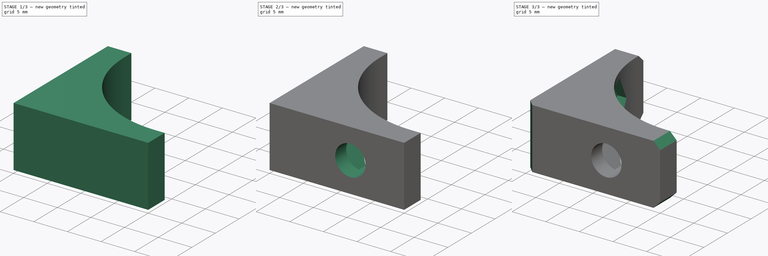
[diagram: build sequence overview — one tinted view per stage of 3, left to right]
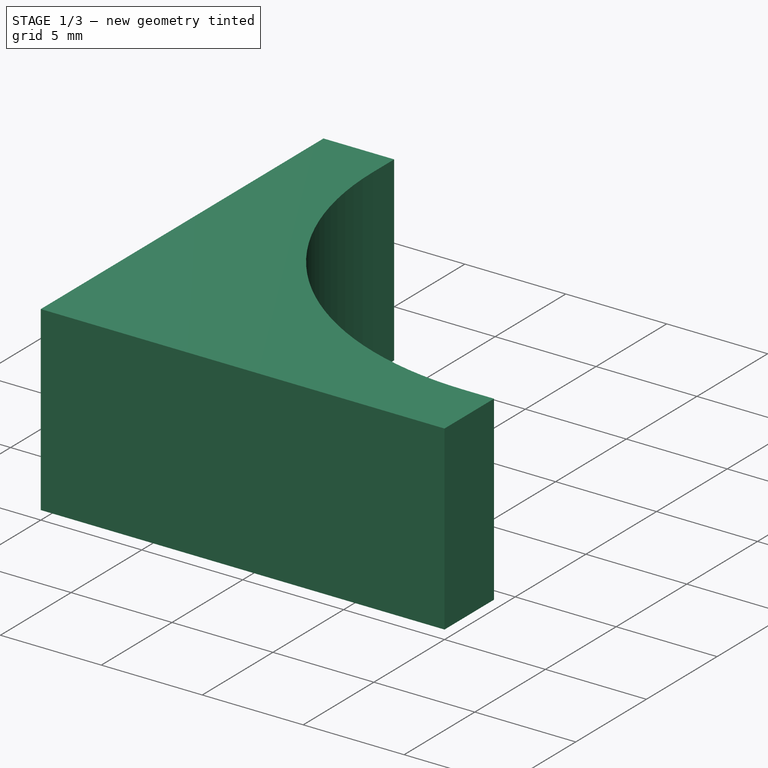
[diagram: stage 1 of 3 — iso view after this stage's code; geometry added in this stage tinted green]
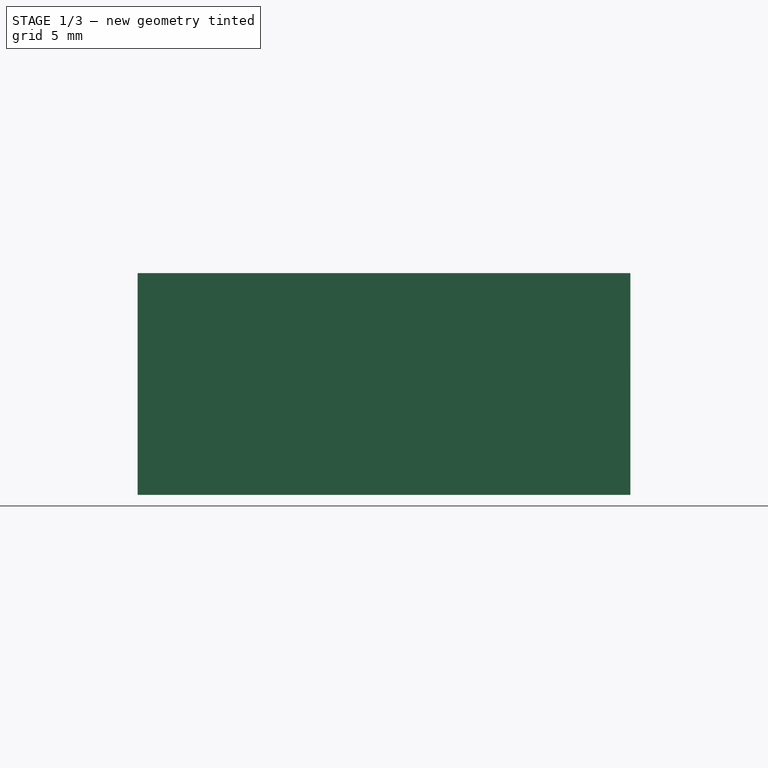
[diagram: stage 1 of 3 — front view after this stage's code; geometry added in this stage tinted green]
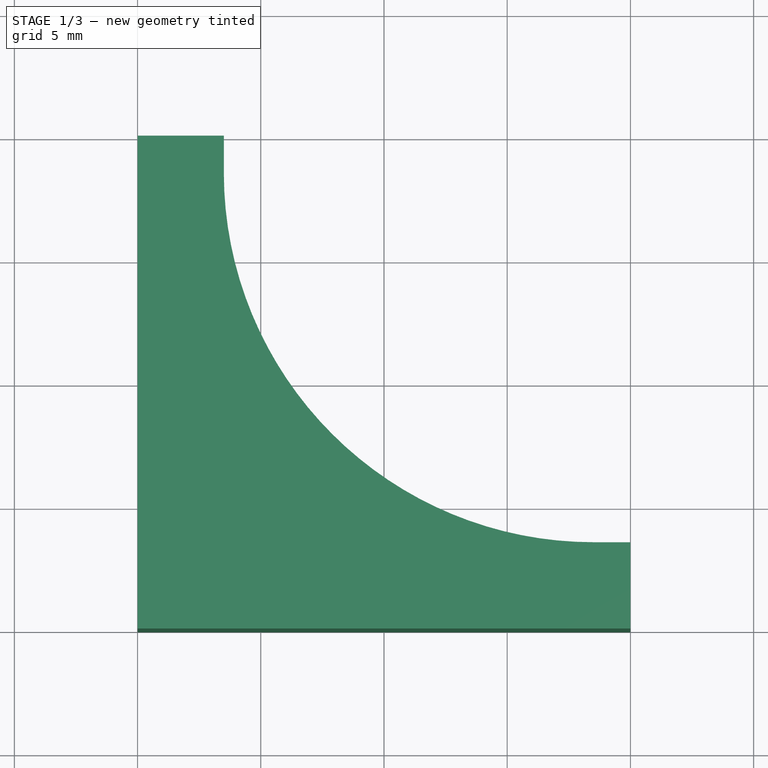
[diagram: stage 1 of 3 — top view after this stage's code; geometry added in this stage tinted green]
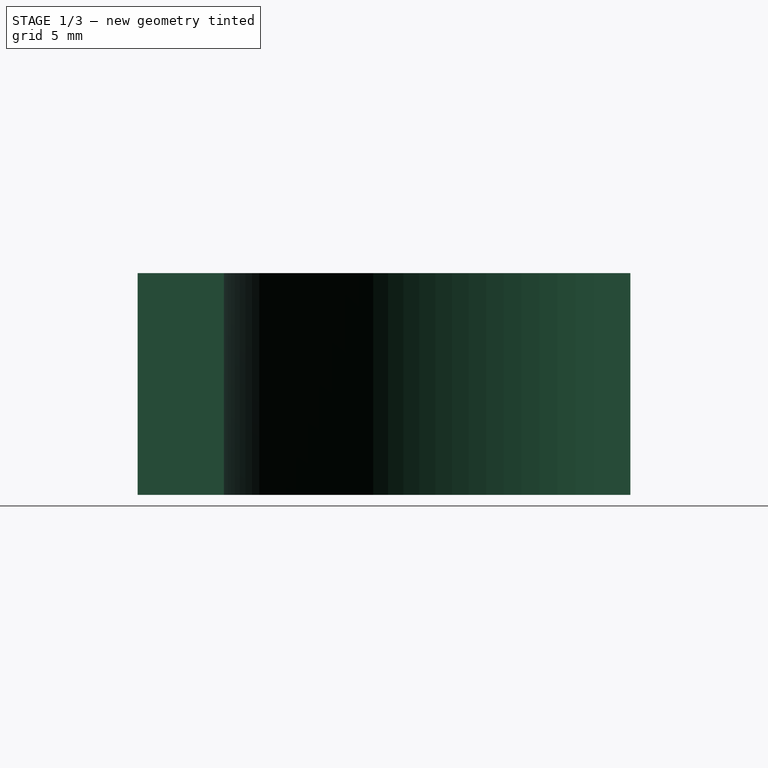
[diagram: stage 1 of 3 — right view after this stage's code; geometry added in this stage tinted green]
FCSTD DOCUMENT  (FreeCAD 0.20R29410 (Git))
Label: Corner Bracket
License: All rights reserved
LicenseURL: http://en.wikipedia.org/wiki/All_rights_reserved
objects: Sketcher::SketchObject×3, Spreadsheet::Sheet×2, PartDesign::Plane×2, PartDesign::Pad×1, PartDesign::Fillet×1, PartDesign::Hole×1, PartDesign::Pocket×1, PartDesign::Mirrored×1, PartDesign::Chamfer×1, PartDesign::Body×1
note: 17 computed .brp shape members not serialized (recipe doc carries the construction recipe); baked Part::Feature solids carry a one-line shape summary decoded from their .brp

FEATURE [Sketcher::SketchObject] Sketch
  FullyConstrained = true
  MapMode = 5
  Support = -> [XY_Plane]
  expr: Constraints[15] = <<dims>>.thickness
  expr: Constraints[16] = <<dims>>.leg_length
  sketch-geometry (6):
    g0: LineSegment StartX=0 StartY=0 StartZ=0 EndX=0 EndY=20 EndZ=0
    g1: LineSegment StartX=0 StartY=20 StartZ=0 EndX=3.5 EndY=20 EndZ=0
    g2: LineSegment StartX=3.5 StartY=20 StartZ=0 EndX=3.5 EndY=3.5 EndZ=0
    g3: LineSegment StartX=3.5 StartY=3.5 StartZ=0 EndX=20 EndY=3.5 EndZ=0
    g4: LineSegment StartX=20 StartY=3.5 StartZ=0 EndX=20 EndY=0 EndZ=0
    g5: LineSegment StartX=20 StartY=0 StartZ=0 EndX=0 EndY=0 EndZ=0
  constraints (17):
    c: Coincident(g-1,g0)
    c: PointOnObject(g0,g-2)
    c: Coincident(g0,g1)
    c: Horizontal(g1)
    c: Coincident(g1,g2)
    c: Vertical(g2)
    c: Coincident(g2,g3)
    c: Horizontal(g3)
    c: Coincident(g3,g4)
    c: PointOnObject(g4,g-1)
    c: Coincident(g4,g5)
    c: Coincident(g5,g0)
    c: Vertical(g4)
    c: Equal(g1,g4)
    c: Equal(g5,g0)
    c: DistanceY(g4,g4) = 3.5
    c: DistanceX(g5,g5) = 20
FEATURE [Spreadsheet::Sheet] Spreadsheet  label="dims"
  cells = A1=hole_dist; B1(hole_dist)=12; A2=hex_width; B2(hex_width)=7.2; A3=width; B3(width)=9; A4=hole_diam; B4(hole_diam)=4; A5=length; B5(leg_length)=20; A6=thickness; B6(thickness)=3.5; A7=hex_cut; B7(hex_cut)==min(thickness / 3; 3)
FEATURE [PartDesign::Pad] Pad
  AlongSketchNormal = false
  Direction = (0,0,1)
  Length = 9
  Length2 = 100
  Midplane = true
  Profile = -> Sketch
  Type = 0
  expr: Length = <<dims>>.width
FEATURE [Sketcher::SketchObject] Sketch001
  FullyConstrained = false
  MapMode = 5
  Placement = pos=(0,0,0) rot=(1,0,0;1.5708rad)
  Support = -> [XZ_Plane]
  expr: Constraints[1] = <<dims>>.hole_dist
  sketch-geometry (1):
    g0: Circle CenterX=12 CenterY=0 CenterZ=0 NormalX=0 NormalY=0 NormalZ=1 AngleXU=0 Radius=2.08899
  constraints (2):
    c: PointOnObject(g0,g-1)
    c: DistanceX(g0) = 12
FEATURE [PartDesign::Plane] DatumPlane
  AttachmentOffset = pos=(0,0,-2.33333) rot=(0,0,1;0rad)
  Length = 60
  MapMode = 5
  Placement = pos=(0,2.33333,5e-16) rot=(1,0,0;1.5708rad)
  ResizeMode = 0
  Support = -> [XZ_Plane]
  Width = 60
  expr: .AttachmentOffset.Base.z = -(<<dims>>.thickness - <<dims>>.hex_cut)
FEATURE [Sketcher::SketchObject] Sketch003
  FullyConstrained = true
  MapMode = 5
  Placement = pos=(0,2.33333,5e-16) rot=(1,0,0;1.5708rad)
  Support = -> [DatumPlane]
  expr: Constraints[19] = <<dims>>.hex_width
  expr: Constraints[20] = <<dims>>.hole_dist
  sketch-geometry (7):
    g0: LineSegment StartX=14.0785 StartY=3.6 StartZ=0 EndX=9.92154 EndY=3.6 EndZ=0
    g1: LineSegment StartX=9.92154 StartY=3.6 StartZ=0 EndX=7.84308 EndY=-4.374e-13 EndZ=0
    g2: LineSegment StartX=7.84308 StartY=-4.377e-13 StartZ=0 EndX=9.92154 EndY=-3.6 EndZ=0
    g3: LineSegment StartX=9.92154 StartY=-3.6 StartZ=0 EndX=14.0785 EndY=-3.6 EndZ=0
    g4: LineSegment StartX=14.0785 StartY=-3.6 StartZ=0 EndX=16.1569 EndY=-2.207e-13 EndZ=0
    g5: LineSegment StartX=16.1569 StartY=-2.208e-13 StartZ=0 EndX=14.0785 EndY=3.6 EndZ=0
    g6: Circle CenterX=12 CenterY=0 CenterZ=0 NormalX=0 NormalY=0 NormalZ=1 AngleXU=0 Radius=4.15692
  constraints (17):
    c: Coincident(g0,g1)
    c: Coincident(g1,g2)
    c: Coincident(g2,g3)
    c: Coincident(g3,g4)
    c: Coincident(g4,g5)
    c: Coincident(g5,g0)
    c: Equal(g0, g1-g5) x5
    c: PointOnObject(g0,g6)
    c: PointOnObject(g1,g6)
    c: PointOnObject(g2,g6)
    c: PointOnObject(g3,g6)
    c: PointOnObject(g4,g6)
    c: PointOnObject(g5,g6)
    c: PointOnObject(g6,g-1)
    c: Horizontal(g0)
    c: DistanceY(g3,g0) = 7.2
    c: DistanceX(g6) = 12
FEATURE [PartDesign::Plane] DatumPlane001
  AttachmentOffset = pos=(0,0,0) rot=(0,1,0;0.785398rad)
  Length = 82.6027
  MapMode = 5
  Placement = pos=(0,0,0) rot=(0.862856,0.357407,0.357407;1.71777rad)
  ResizeMode = 0
  Support = -> [XZ_Plane]
  Width = 61.8921
FEATURE [PartDesign::Fillet] Fillet
  Base = -> Pad [Edge8]
  BaseFeature = -> Pad
  Radius = 15
  SupportTransform = false
  UseAllEdges = false
  expr: Radius = 0.75 * <<dims>>.leg_length
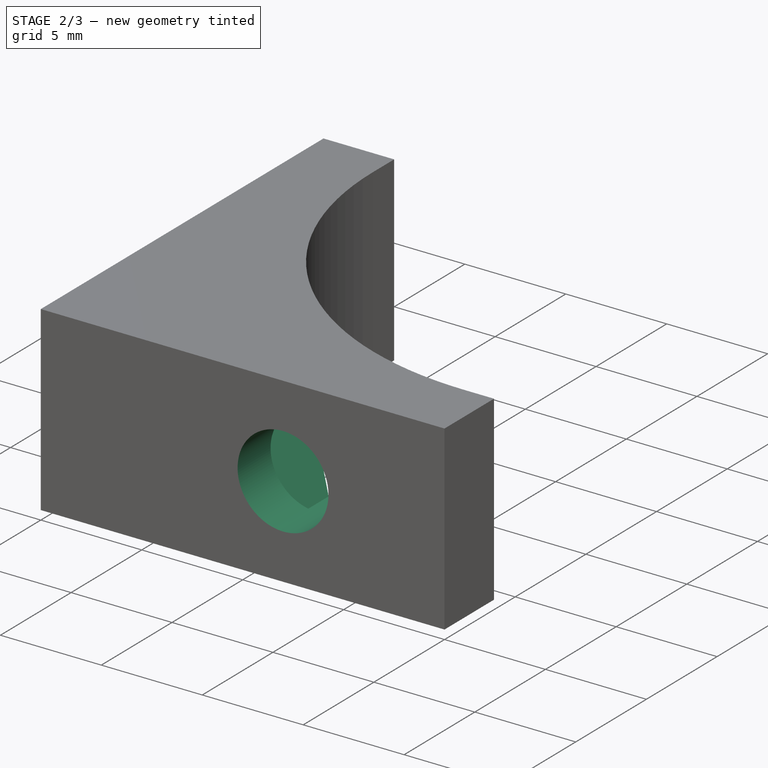
[diagram: stage 2 of 3 — iso view after this stage's code; geometry added in this stage tinted green]
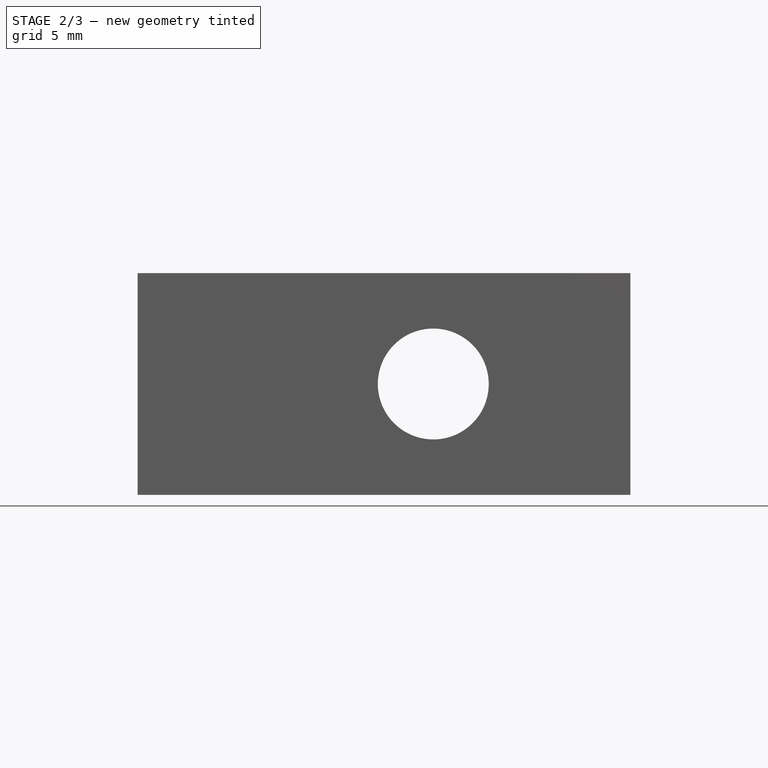
[diagram: stage 2 of 3 — front view after this stage's code; geometry added in this stage tinted green]
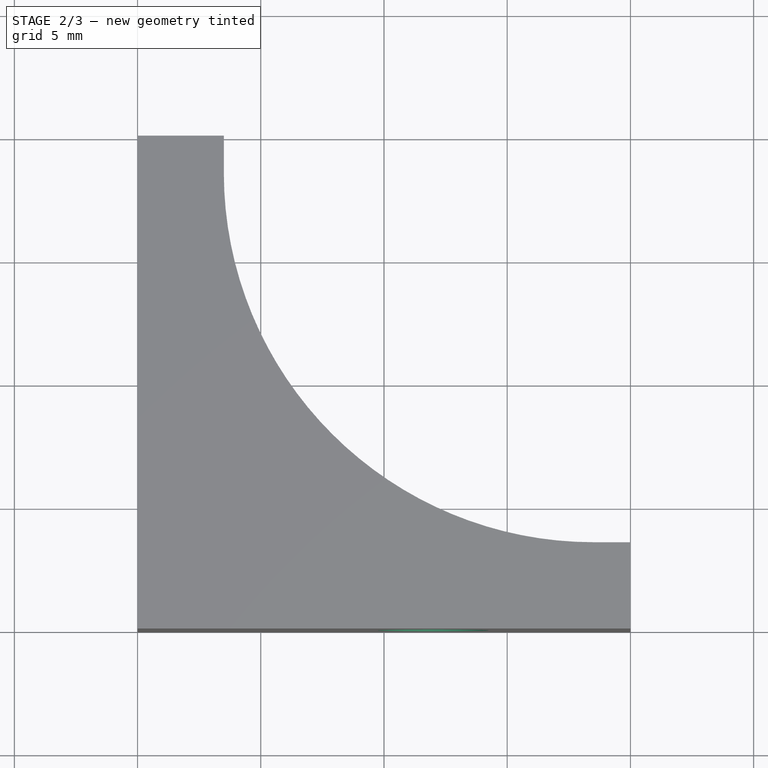
[diagram: stage 2 of 3 — top view after this stage's code; geometry added in this stage tinted green]
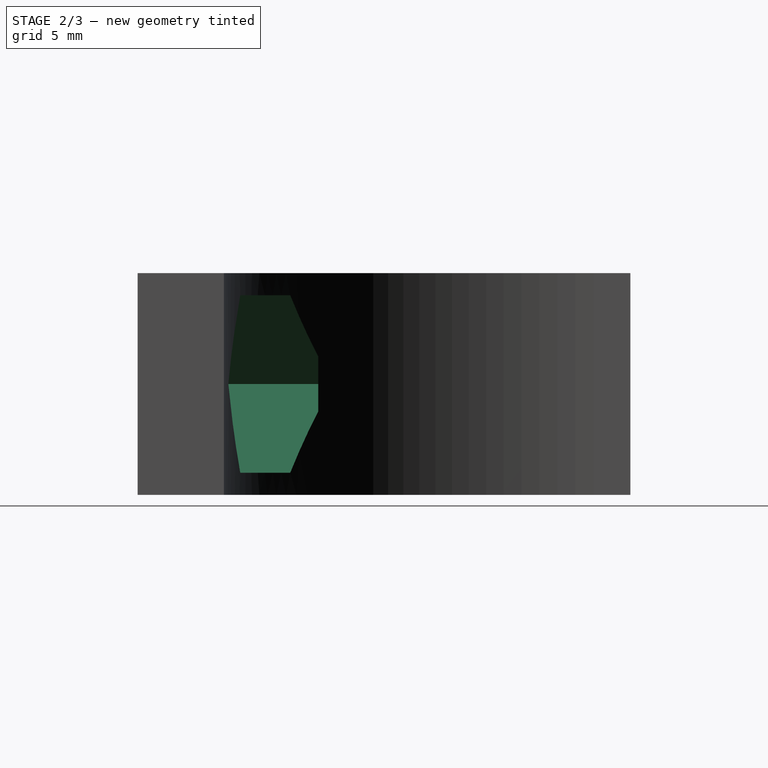
[diagram: stage 2 of 3 — right view after this stage's code; geometry added in this stage tinted green]
FEATURE [PartDesign::Hole] Hole
  BaseFeature = -> Fillet
  CustomThreadClearance = 0
  Depth = 25
  DepthType = 0
  Diameter = 4.5
  DrillForDepth = false
  DrillPoint = 1
  DrillPointAngle = 118
  HoleCutCountersinkAngle = 90
  HoleCutCustomValues = false
  HoleCutDepth = 0
  HoleCutDiameter = 6.1
  HoleCutType = 0
  ModelThread = false
  Profile = -> Sketch001
  Tapered = false
  TaperedAngle = 90
  ThreadClass = 0
  ThreadDepth = 25
  ThreadDepthType = 0
  ThreadDirection = 0
  ThreadFit = 0
  ThreadSize = 11
  ThreadType = 1
  Threaded = false
  UseCustomThreadClearance = false
FEATURE [PartDesign::Pocket] Pocket
  BaseFeature = -> Hole
  Direction = (1,1,1)
  Length = 5
  Length2 = 100
  Profile = -> Sketch003
  Type = 0
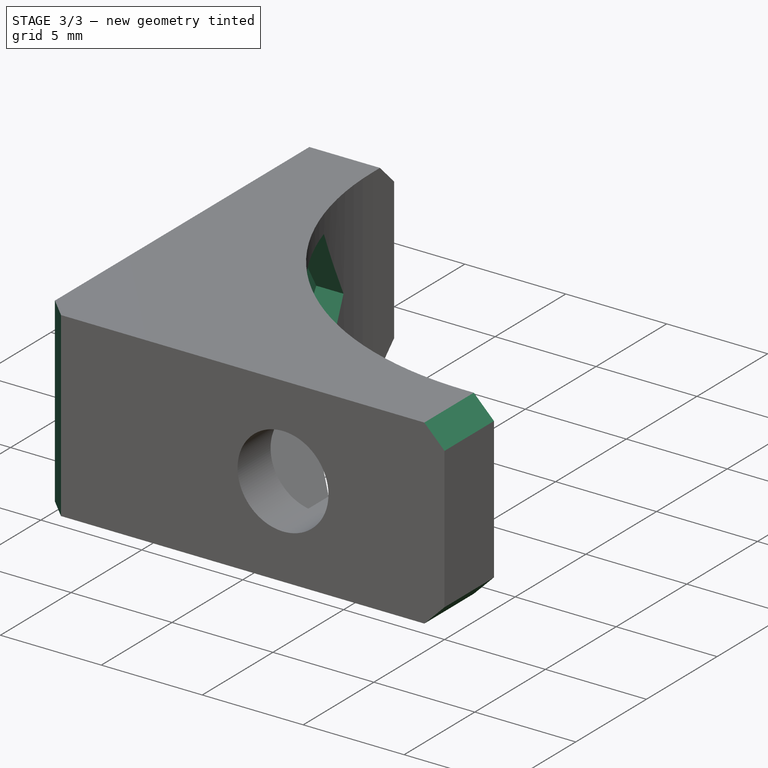
[diagram: stage 3 of 3 — iso view after this stage's code; geometry added in this stage tinted green]
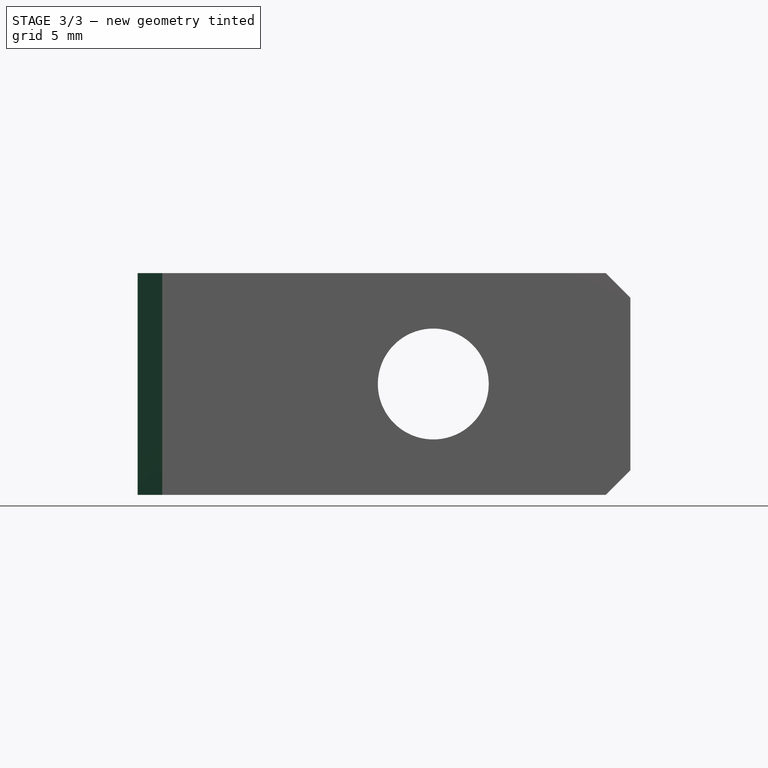
[diagram: stage 3 of 3 — front view after this stage's code; geometry added in this stage tinted green]
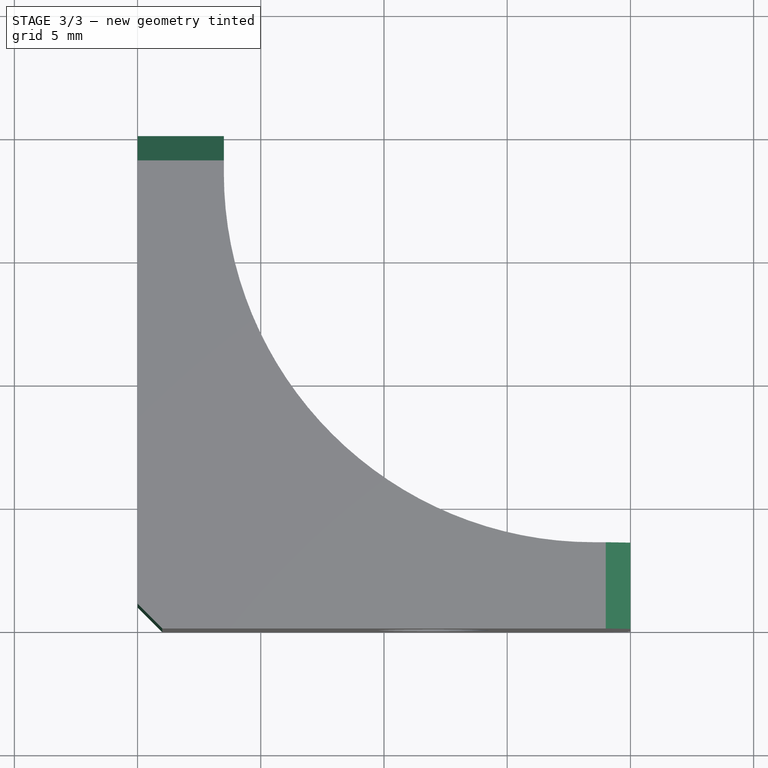
[diagram: stage 3 of 3 — top view after this stage's code; geometry added in this stage tinted green]
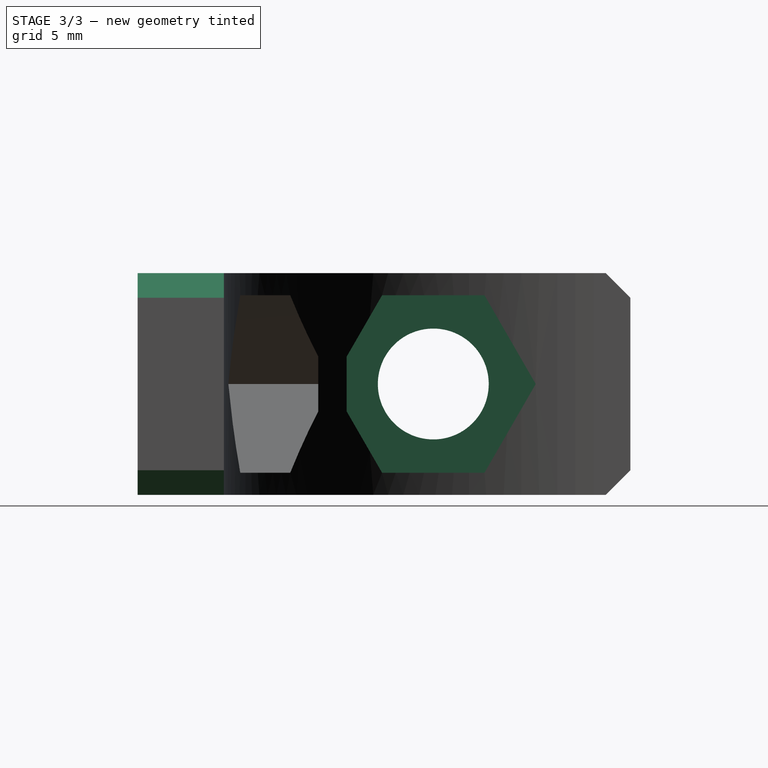
[diagram: stage 3 of 3 — right view after this stage's code; geometry added in this stage tinted green]
FEATURE [PartDesign::Mirrored] Mirrored
  BaseFeature = -> Pocket
  MirrorPlane = -> DatumPlane001
  Originals = -> [Pocket,Hole]
FEATURE [PartDesign::Chamfer] Chamfer
  Angle = 45
  Base = -> Mirrored [Edge34,Edge31,Edge9,Edge28,Edge6]
  BaseFeature = -> Mirrored
  ChamferType = 0
  FlipDirection = false
  Size = 1
  Size2 = 1
  SupportTransform = false
  UseAllEdges = false
FEATURE [PartDesign::Body] Body  label="Printed"
  Group = -> [Sketch,Pad,Sketch001,Fillet,Hole,DatumPlane,Sketch003,Pocket,DatumPlane001,Mirrored,Chamfer]
  Origin = -> Origin
  Tip = -> Chamfer
FEATURE [Spreadsheet::Sheet] _PARTINFO_  label="#PARTINFO#"
  cells = A1=IDENTNO; A2=DESCRIPTION; B2=Corner Bracket; A3=SUPPLIER; A4=SUPP.IDENTNO; A5=SUPP.DESCRIPTION; A6=(FILENAME)
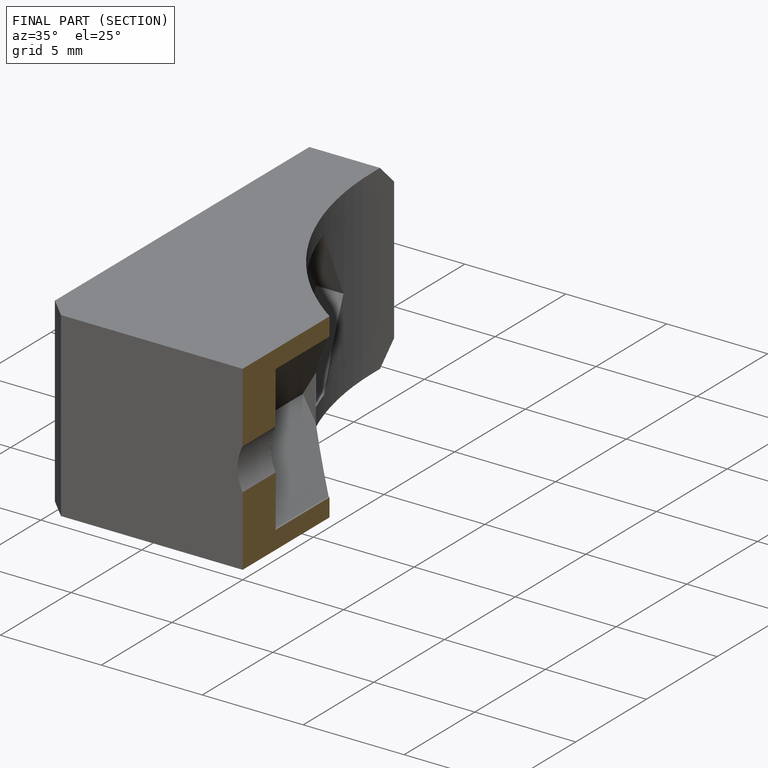
[diagram: finished part — half-section view (interior)]
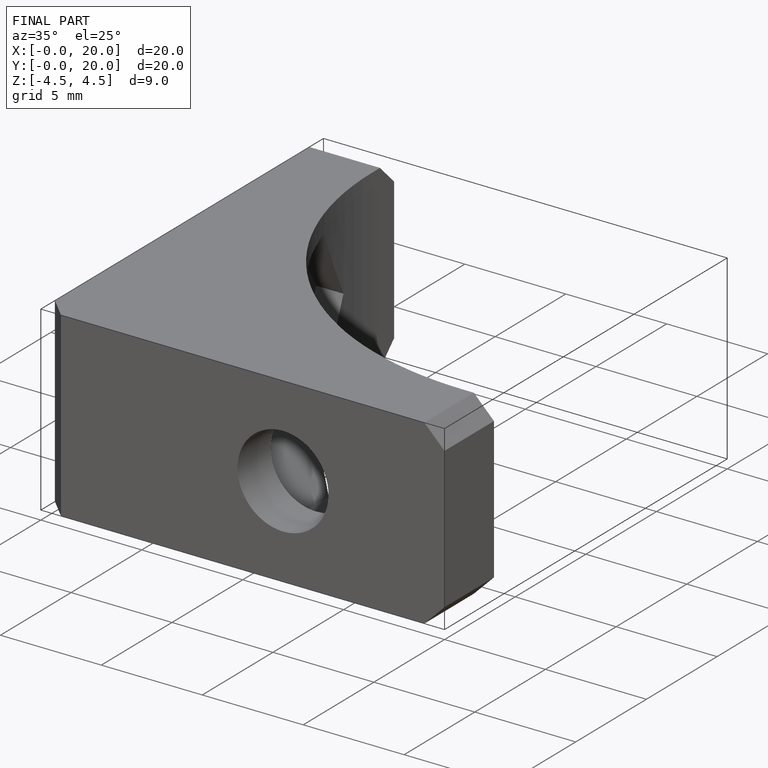
[diagram: finished part — iso view with bounding-box wireframe]
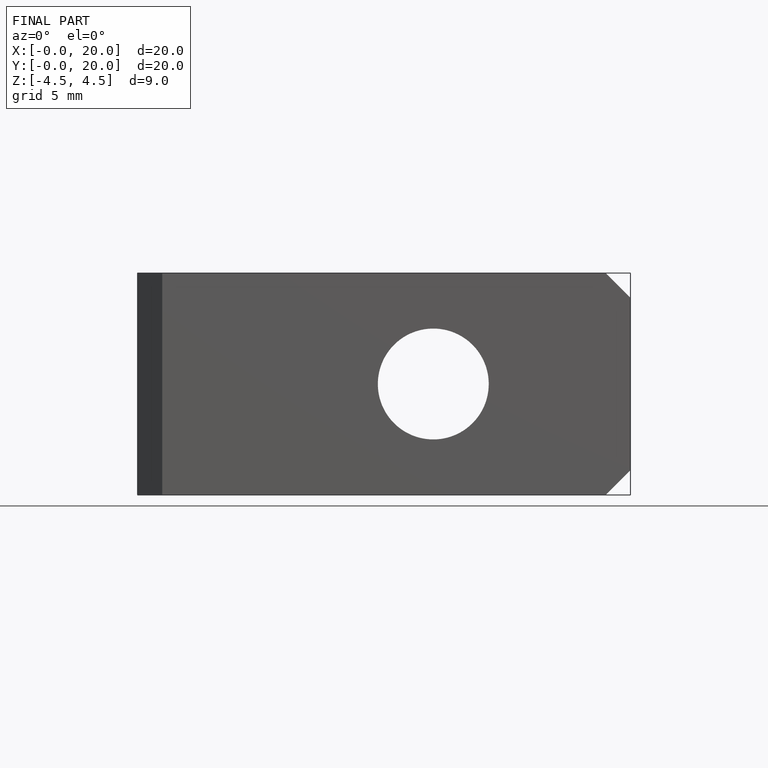
[diagram: finished part — front view with bounding-box wireframe]
